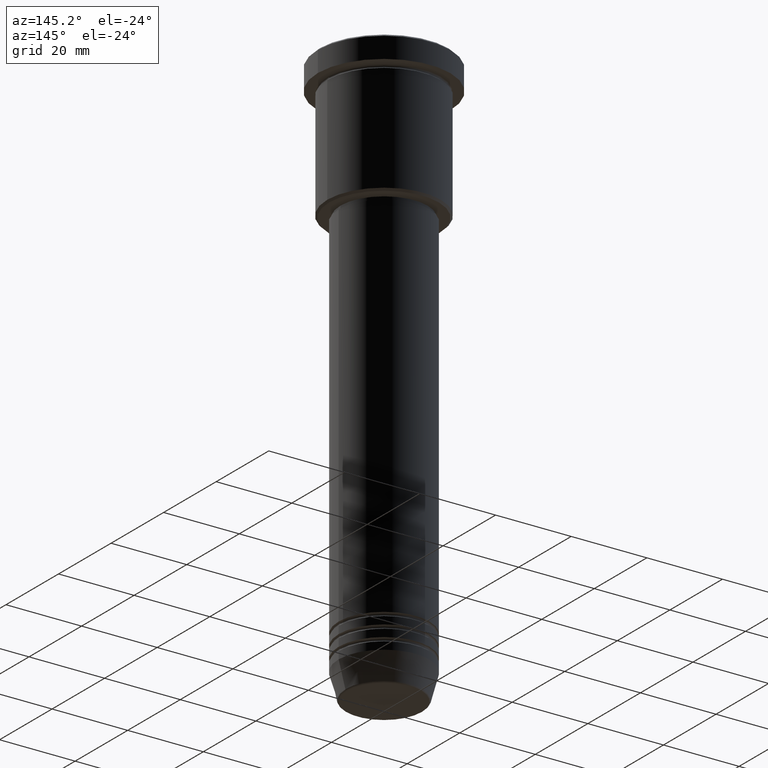
[diagram: clean part render]
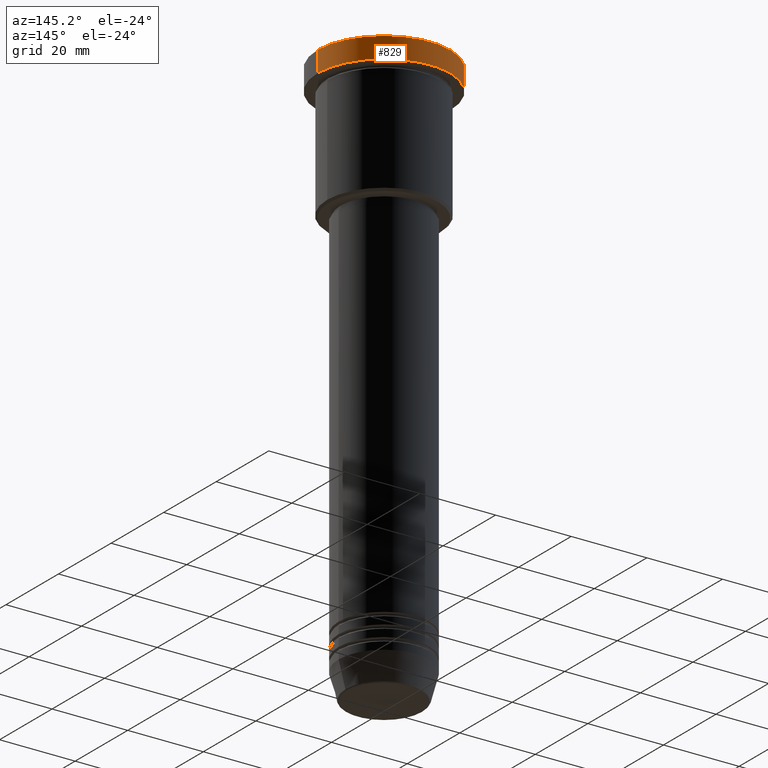
[diagram: same view with one face highlighted and labeled with its STEP entity id]
A machine part, auxiliary view. The second image highlights one B-rep face of the part: STEP entity #829.
In plain terms, the highlighted cylindrical surface (partial cylindrical patch) has radius 17.5 mm, axis along (-0, -0, 1).
Its self-contained STEP definition (entity closure, byte-faithful):
#19 = EDGE_CURVE ( 'NONE', #673, #859, #27, .T. ) ;
#26 = DIRECTION ( 'NONE',  ( 0.000000000000000000, 0.000000000000000000, -1.000000000000000000 ) ) ;
#27 = LINE ( 'NONE', #384, #815 ) ;
#48 = AXIS2_PLACEMENT_3D ( 'NONE', #206, #920, #475 ) ;
#100 = CARTESIAN_POINT ( 'NONE',  ( 17.50000000000000000, 0.000000000000000000, -0.4999999999999865663 ) ) ;
#116 = DIRECTION ( 'NONE',  ( -0.000000000000000000, -0.000000000000000000, 1.000000000000000000 ) ) ;
#192 = CIRCLE ( 'NONE', #326, 17.50000000000000000 ) ;
#206 = CARTESIAN_POINT ( 'NONE',  ( 0.000000000000000000, 0.000000000000000000, 0.000000000000000000 ) ) ;
#225 = DIRECTION ( 'NONE',  ( -0.000000000000000000, -0.000000000000000000, 1.000000000000000000 ) ) ;
#245 = CARTESIAN_POINT ( 'NONE',  ( -17.50000000000000000, 2.143131898507868248E-15, -5.999999999999995559 ) ) ;
#303 = CYLINDRICAL_SURFACE ( 'NONE', #48, 17.50000000000000000 ) ;
#326 = AXIS2_PLACEMENT_3D ( 'NONE', #682, #225, #404 ) ;
#374 = DIRECTION ( 'NONE',  ( -0.000000000000000000, -0.000000000000000000, 1.000000000000000000 ) ) ;
#384 = CARTESIAN_POINT ( 'NONE',  ( -17.50000000000000000, 2.143131898507868248E-15, 0.000000000000000000 ) ) ;
#404 = DIRECTION ( 'NONE',  ( 1.000000000000000000, 0.000000000000000000, 0.000000000000000000 ) ) ;
#406 = VECTOR ( 'NONE', #116, 1000.000000000000000 ) ;
#410 = EDGE_CURVE ( 'NONE', #859, #823, #679, .T. ) ;
#475 = DIRECTION ( 'NONE',  ( 1.000000000000000000, 0.000000000000000000, 0.000000000000000000 ) ) ;
#522 = EDGE_CURVE ( 'NONE', #936, #823, #766, .T. ) ;
#558 = CARTESIAN_POINT ( 'NONE',  ( 0.000000000000000000, 0.000000000000000000, -0.4999999999999865663 ) ) ;
#573 = CARTESIAN_POINT ( 'NONE',  ( 17.50000000000000000, 0.000000000000000000, -5.999999999999995559 ) ) ;
#613 = ORIENTED_EDGE ( 'NONE', *, *, #410, .T. ) ;
#659 = DIRECTION ( 'NONE',  ( 1.000000000000000000, 0.000000000000000000, 0.000000000000000000 ) ) ;
#673 = VERTEX_POINT ( 'NONE', #245 ) ;
#679 = CIRCLE ( 'NONE', #1014, 17.50000000000000000 ) ;
#682 = CARTESIAN_POINT ( 'NONE',  ( 0.000000000000000000, 0.000000000000000000, -5.999999999999995559 ) ) ;
#737 = EDGE_LOOP ( 'NONE', ( #910, #803, #613, #790 ) ) ;
#766 = LINE ( 'NONE', #857, #406 ) ;
#790 = ORIENTED_EDGE ( 'NONE', *, *, #522, .F. ) ;
#803 = ORIENTED_EDGE ( 'NONE', *, *, #19, .T. ) ;
#815 = VECTOR ( 'NONE', #374, 1000.000000000000000 ) ;
#823 = VERTEX_POINT ( 'NONE', #100 ) ;
#829 = ADVANCED_FACE ( 'NONE', ( #830 ), #303, .T. ) ;
#830 = FACE_OUTER_BOUND ( 'NONE', #737, .T. ) ;
#857 = CARTESIAN_POINT ( 'NONE',  ( 17.50000000000000000, 0.000000000000000000, 0.000000000000000000 ) ) ;
#859 = VERTEX_POINT ( 'NONE', #943 ) ;
#910 = ORIENTED_EDGE ( 'NONE', *, *, #1022, .T. ) ;
#920 = DIRECTION ( 'NONE',  ( -0.000000000000000000, -0.000000000000000000, 1.000000000000000000 ) ) ;
#936 = VERTEX_POINT ( 'NONE', #573 ) ;
#943 = CARTESIAN_POINT ( 'NONE',  ( -17.50000000000000000, 2.143131898507868248E-15, -0.4999999999999865663 ) ) ;
#1014 = AXIS2_PLACEMENT_3D ( 'NONE', #558, #26, #659 ) ;
#1022 = EDGE_CURVE ( 'NONE', #936, #673, #192, .T. ) ;